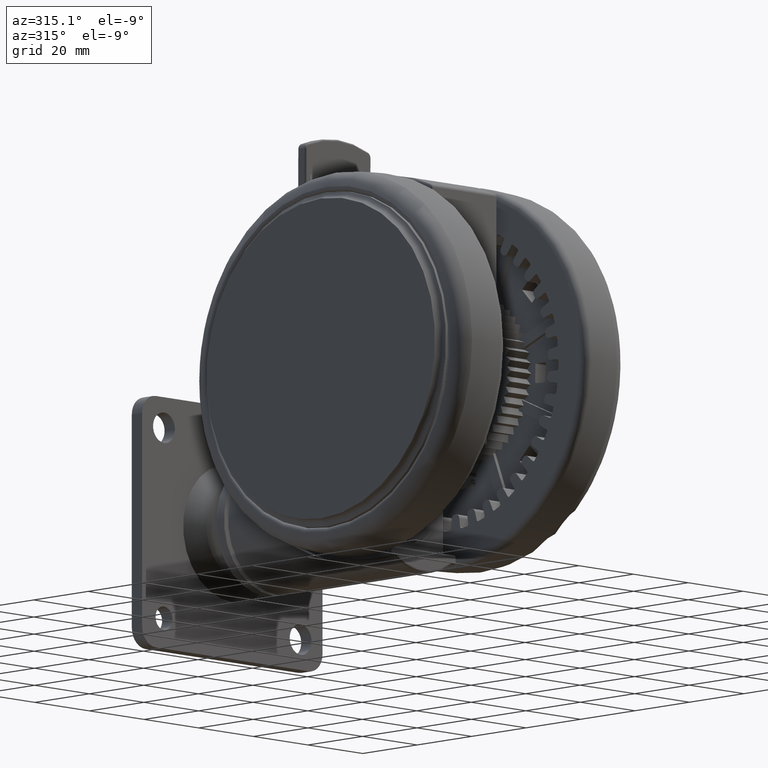
[diagram: clean part render]
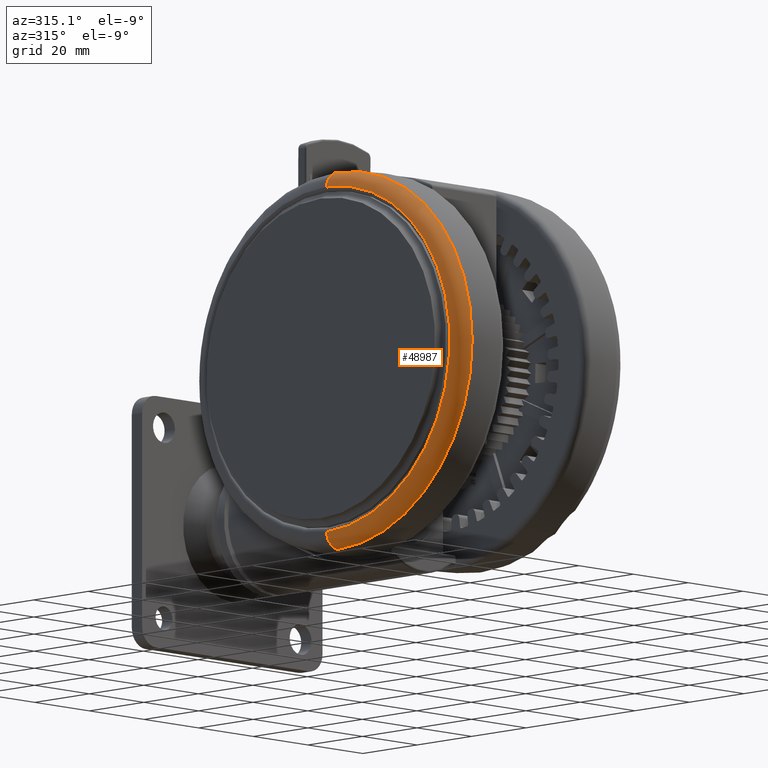
[diagram: same view with one face highlighted and labeled with its STEP entity id]
A machine part, auxiliary view. The second image highlights one B-rep face of the part: STEP entity #48987.
In plain terms, the highlighted toroidal blend (fillet) surface has major radius 45 mm and minor (blend) radius 4.5 mm.
Its self-contained STEP definition (entity closure, byte-faithful):
#1922 = CIRCLE ( 'NONE', #72536, 45.27272727274608900 ) ;
#2835 = CARTESIAN_POINT ( 'NONE',  ( 0.9172837793206922700, 45.26343848606880000, -63.09779411578138300 ) ) ;
#5201 = DIRECTION ( 'NONE',  ( -0.9997947190500678900, 0.02026128721468448100, 0.0000000000000000000 ) ) ;
#6346 = TOROIDAL_SURFACE ( 'NONE', #11764, 45.00000000000000000, 4.500000000013238300 ) ;
#7745 = DIRECTION ( 'NONE',  ( 0.9997947190500678900, -0.02026128721468460300, -0.0000000000000000000 ) ) ;
#7988 = AXIS2_PLACEMENT_3D ( 'NONE', #43447, #5201, #49883 ) ;
#8223 = ORIENTED_EDGE ( 'NONE', *, *, #35842, .F. ) ;
#8292 = FACE_OUTER_BOUND ( 'NONE', #70683, .T. ) ;
#11764 = AXIS2_PLACEMENT_3D ( 'NONE', #50484, #31184, #25057 ) ;
#12041 = EDGE_CURVE ( 'NONE', #64980, #19177, #18917, .T. ) ;
#15373 = CIRCLE ( 'NONE', #79247, 4.500000000013241900 ) ;
#18917 = CIRCLE ( 'NONE', #7988, 4.500000000013241900 ) ;
#19177 = VERTEX_POINT ( 'NONE', #2835 ) ;
#25057 = DIRECTION ( 'NONE',  ( -0.02026128721468459900, -0.9997947190500677800, 0.0000000000000000000 ) ) ;
#25223 = CARTESIAN_POINT ( 'NONE',  ( -0.9172836812100044800, -45.26342880251783600, -63.09779411578138300 ) ) ;
#28953 = CARTESIAN_POINT ( 'NONE',  ( 4.905534659038757200E-008, 4.841775480546317600E-006, -63.09779411578138300 ) ) ;
#31184 = DIRECTION ( 'NONE',  ( -0.0000000000000000000, 0.0000000000000000000, -1.000000000000000000 ) ) ;
#35353 = DIRECTION ( 'NONE',  ( -0.02026128721468460300, -0.9997947190500678900, 0.0000000000000000000 ) ) ;
#35842 = EDGE_CURVE ( 'NONE', #19177, #47980, #1922, .T. ) ;
#36140 = VERTEX_POINT ( 'NONE', #57476 ) ;
#38192 = CARTESIAN_POINT ( 'NONE',  ( 4.905534659038757200E-008, 4.841775480546317600E-006, -59.10420351503971400 ) ) ;
#41793 = ORIENTED_EDGE ( 'NONE', *, *, #70702, .T. ) ;
#43447 = CARTESIAN_POINT ( 'NONE',  ( 0.9117579737161482000, 44.99076719902853200, -58.60606618158728800 ) ) ;
#44637 = DIRECTION ( 'NONE',  ( -0.02026128721468459900, -0.9997947190500677800, 0.0000000000000000000 ) ) ;
#46024 = CARTESIAN_POINT ( 'NONE',  ( -0.9117578756054605100, -44.99075751547756900, -58.60606618158728800 ) ) ;
#47484 = EDGE_CURVE ( 'NONE', #64980, #36140, #64225, .T. ) ;
#47980 = VERTEX_POINT ( 'NONE', #25223 ) ;
#48987 = ADVANCED_FACE ( 'NONE', ( #8292 ), #6346, .T. ) ;
#49883 = DIRECTION ( 'NONE',  ( -0.02026128721468446400, -0.9997947190500678900, 0.0000000000000000000 ) ) ;
#50100 = CARTESIAN_POINT ( 'NONE',  ( 1.002373416269179800, 49.46219292677030700, -59.10420351503971400 ) ) ;
#50484 = CARTESIAN_POINT ( 'NONE',  ( 4.905534659038757200E-008, 4.841775480546317600E-006, -58.60606618158728800 ) ) ;
#52465 = DIRECTION ( 'NONE',  ( 0.02026128721468458200, 0.9997947190500678900, 0.0000000000000000000 ) ) ;
#57476 = CARTESIAN_POINT ( 'NONE',  ( -1.002373318158492600, -49.46218324321935000, -59.10420351503971400 ) ) ;
#61708 = ORIENTED_EDGE ( 'NONE', *, *, #12041, .F. ) ;
#64225 = CIRCLE ( 'NONE', #78687, 49.47234381472850400 ) ;
#64980 = VERTEX_POINT ( 'NONE', #50100 ) ;
#70683 = EDGE_LOOP ( 'NONE', ( #61708, #78334, #41793, #8223 ) ) ;
#70702 = EDGE_CURVE ( 'NONE', #36140, #47980, #15373, .T. ) ;
#72536 = AXIS2_PLACEMENT_3D ( 'NONE', #28953, #73759, #35353 ) ;
#73759 = DIRECTION ( 'NONE',  ( -0.0000000000000000000, 0.0000000000000000000, -1.000000000000000000 ) ) ;
#78334 = ORIENTED_EDGE ( 'NONE', *, *, #47484, .T. ) ;
#78687 = AXIS2_PLACEMENT_3D ( 'NONE', #38192, #83074, #44637 ) ;
#79247 = AXIS2_PLACEMENT_3D ( 'NONE', #46024, #7745, #52465 ) ;
#83074 = DIRECTION ( 'NONE',  ( -0.0000000000000000000, 0.0000000000000000000, -1.000000000000000000 ) ) ;